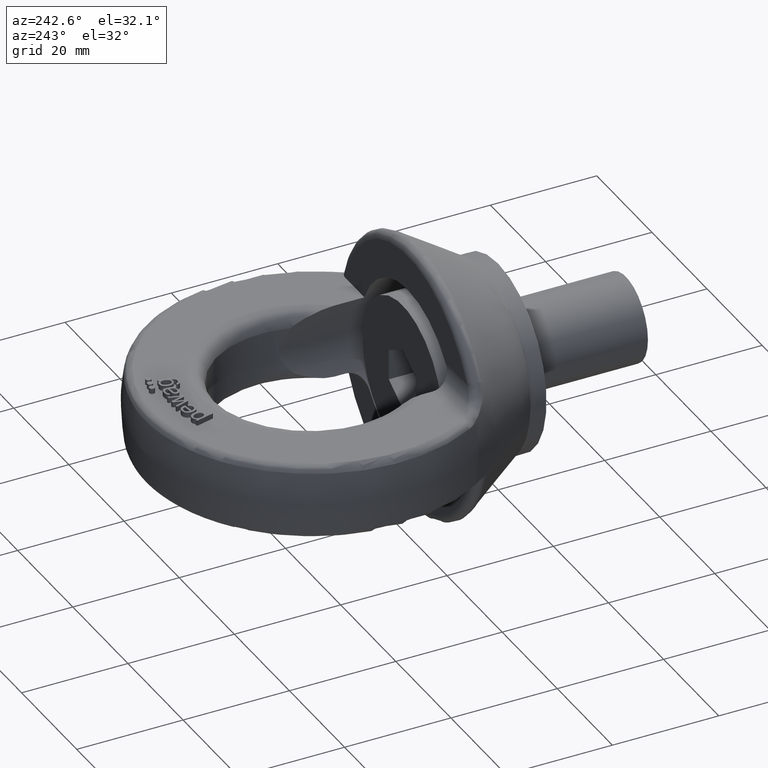
[diagram: clean part render]
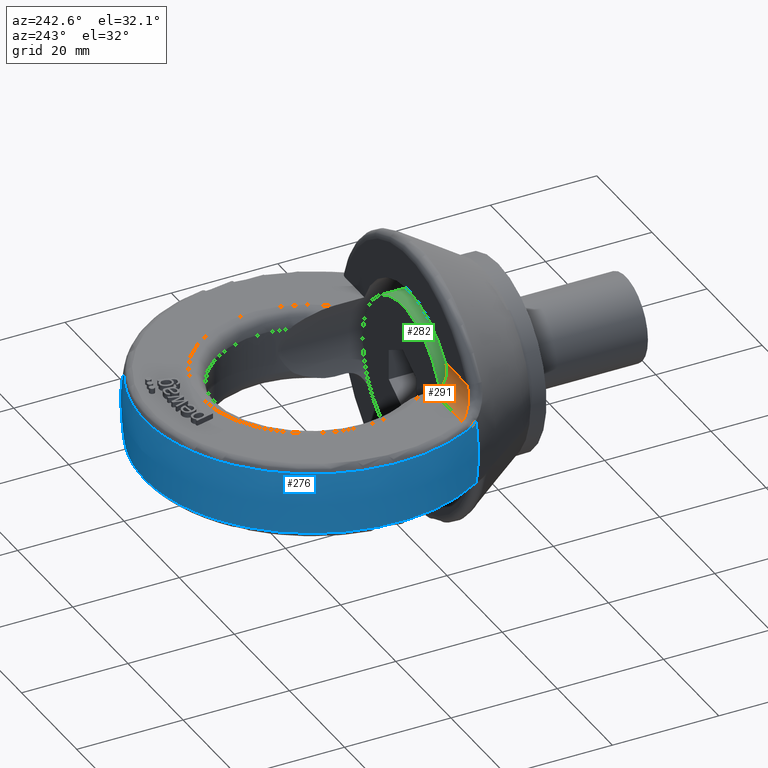
[diagram: same view with three faces highlighted in distinct colors, each labeled with its STEP entity id]
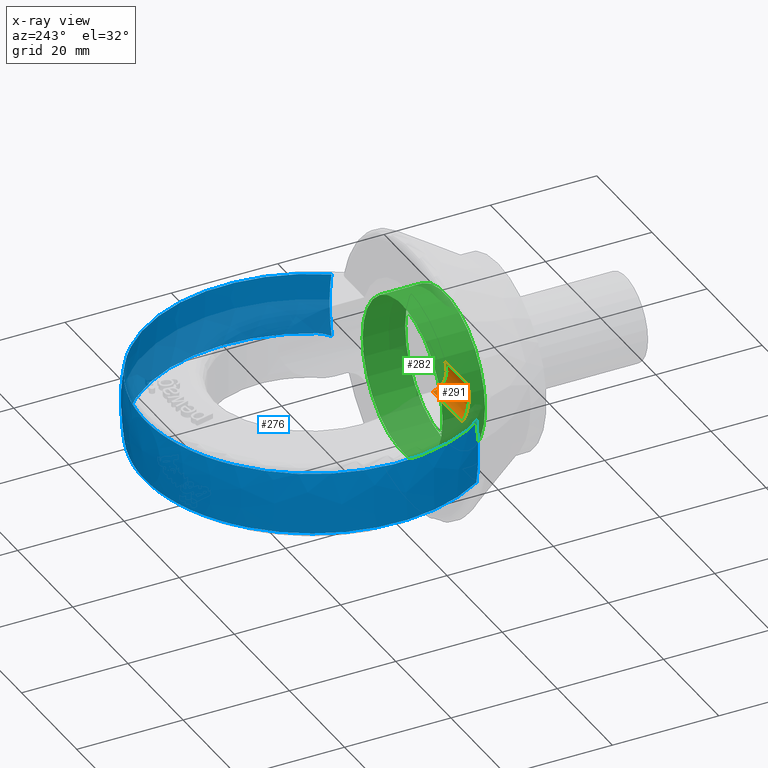
[diagram: x-ray of the same camera — body ghosted, the three highlighted faces saturated]
A machine part, auxiliary view with three faces highlighted in distinct colors.
The next image is the same camera in x-ray (body ghosted, the three faces saturated) — at least one of them is partly hidden behind the body in this view.
Their STEP definitions:

[orange] entity #291 — the highlighted cylindrical surface (edge-blend (fillet) strip) has radius 3.5 mm, axis along (-1, -0, 0).
#115=CYLINDRICAL_SURFACE('',#3075,3.5);
#134=FACE_OUTER_BOUND('',#673,.T.);
#291=ADVANCED_FACE('',(#134),#115,.F.);
#673=EDGE_LOOP('',(#1404,#1405,#1406,#1407,#1408));
#868=LINE('',#3913,#1052);
#876=LINE('',#4023,#1060);
#1052=VECTOR('',#3218,1.);
#1060=VECTOR('',#3228,1.);
#1404=ORIENTED_EDGE('',*,*,#2415,.F.);
#1405=ORIENTED_EDGE('',*,*,#2483,.T.);
#1406=ORIENTED_EDGE('',*,*,#2484,.T.);
#1407=ORIENTED_EDGE('',*,*,#2431,.F.);
#1408=ORIENTED_EDGE('',*,*,#2463,.F.);
#2129=VERTEX_POINT('',#3884);
#2136=VERTEX_POINT('',#3912);
#2152=VERTEX_POINT('',#4024);
#2153=VERTEX_POINT('',#4025);
#2192=VERTEX_POINT('',#4236);
#2415=EDGE_CURVE('',#2136,#2129,#868,.T.);
#2431=EDGE_CURVE('',#2152,#2153,#876,.T.);
#2463=EDGE_CURVE('',#2129,#2152,#2825,.T.);
#2483=EDGE_CURVE('',#2136,#2192,#2826,.T.);
#2484=EDGE_CURVE('',#2192,#2153,#2827,.T.);
#2825=B_SPLINE_CURVE_WITH_KNOTS('',3,(#4173,#4174,#4175,#4176,#4177,#4178,
#4179,#4180,#4181,#4182,#4183,#4184,#4185,#4186,#4187,#4188),
 .UNSPECIFIED.,.F.,.F.,(4,3,3,3,3,4),(0.,0.182677939227406,0.365097147091186,
0.551353588669147,0.75143462339489,1.),.UNSPECIFIED.);
#2826=B_SPLINE_CURVE_WITH_KNOTS('',3,(#4232,#4233,#4234,#4235),
 .UNSPECIFIED.,.F.,.F.,(4,4),(0.,1.),.UNSPECIFIED.);
#2827=B_SPLINE_CURVE_WITH_KNOTS('',3,(#4237,#4238,#4239,#4240),
 .UNSPECIFIED.,.F.,.F.,(4,4),(0.,1.),.UNSPECIFIED.);
#3075=AXIS2_PLACEMENT_3D('',#4241,#3318,#3319);
#3218=DIRECTION('',(1.,1.94269602349167E-16,-1.96585689920538E-32));
#3228=DIRECTION('',(-1.,-1.94269602349167E-16,1.96585689920538E-32));
#3318=DIRECTION('',(-1.,-1.94269602349167E-16,1.96585689920538E-32));
#3319=DIRECTION('',(0.,-1.,0.));
#3884=CARTESIAN_POINT('',(-15.7583784425883,20.5,7.00000000000001));
#3912=CARTESIAN_POINT('',(-26.3581107061944,20.5,7.00000000000001));
#3913=CARTESIAN_POINT('',(64.,20.5,7.00000000000001));
#4023=CARTESIAN_POINT('',(-8.92946428571429,17.,10.5));
#4024=CARTESIAN_POINT('',(-13.6775908382958,17.,10.5));
#4025=CARTESIAN_POINT('',(-21.4831972949938,17.,10.5));
#4173=CARTESIAN_POINT('',(-15.7583784425883,20.5,7.00000000000001));
#4174=CARTESIAN_POINT('',(-15.7583784425883,20.1367796577121,7.00000000000001));
#4175=CARTESIAN_POINT('',(-15.7327574774421,19.7685357293251,7.05843871219315));
#4176=CARTESIAN_POINT('',(-15.6823100786297,19.4261831930591,7.16879639392438));
#4177=CARTESIAN_POINT('',(-15.6319021154529,19.0840982799058,7.27906780707816));
#4178=CARTESIAN_POINT('',(-15.5552275989607,18.7586781954158,7.44393401751468));
#4179=CARTESIAN_POINT('',(-15.4553180463978,18.4741528672489,7.6458900871333));
#4180=CARTESIAN_POINT('',(-15.3532334029808,18.1834332521176,7.85224286145822));
#4181=CARTESIAN_POINT('',(-15.2242331760566,17.9279858536678,8.10210777458113));
#4182=CARTESIAN_POINT('',(-15.0746445974216,17.7216230990911,8.37147426689362));
#4183=CARTESIAN_POINT('',(-14.9139142210308,17.49988983898,8.66090396862287));
#4184=CARTESIAN_POINT('',(-14.7256743961402,17.3292358264097,8.97920204975943));
#4185=CARTESIAN_POINT('',(-14.5202538645523,17.2121686958103,9.29993112064746));
#4186=CARTESIAN_POINT('',(-14.2656398551719,17.0670666884396,9.69746740405788));
#4187=CARTESIAN_POINT('',(-13.9783330617718,17.,10.1082448494758));
#4188=CARTESIAN_POINT('',(-13.6775908382958,17.,10.5));
#4232=CARTESIAN_POINT('',(-26.3581107061944,20.5,7.00000000000001));
#4233=CARTESIAN_POINT('',(-25.9513332016015,19.9718282512882,7.00000000000001));
#4234=CARTESIAN_POINT('',(-25.5128799493974,19.4968930462756,7.11337690603593));
#4235=CARTESIAN_POINT('',(-25.0476201606404,19.0638977635784,7.30819637719599));
#4236=CARTESIAN_POINT('',(-25.0476201606405,19.0638977635783,7.30819637719601));
#4237=CARTESIAN_POINT('',(-25.0476201606405,19.0638977635783,7.30819637719601));
#4238=CARTESIAN_POINT('',(-23.7847677954004,17.8886207890674,7.83699391331361));
#4239=CARTESIAN_POINT('',(-22.5049784100453,17.,9.00672617095578));
#4240=CARTESIAN_POINT('',(-21.4831972949938,17.,10.5));
#4241=CARTESIAN_POINT('',(-8.92946428571429,20.5,10.5));

[blue] entity #276 — the highlighted spherical surface has radius 32 mm.
#123=SPHERICAL_SURFACE('',#3051,32.);
#126=FACE_OUTER_BOUND('',#651,.T.);
#276=ADVANCED_FACE('',(#126),#123,.T.);
#541=CIRCLE('',#3043,26.9423040781809);
#543=CIRCLE('',#3045,26.9423040781809);
#546=CIRCLE('',#3049,31.4595742880864);
#547=CIRCLE('',#3050,31.4595742880864);
#651=EDGE_LOOP('',(#1339,#1340,#1341,#1342,#1343,#1344));
#1339=ORIENTED_EDGE('',*,*,#2434,.F.);
#1340=ORIENTED_EDGE('',*,*,#2443,.T.);
#1341=ORIENTED_EDGE('',*,*,#2444,.T.);
#1342=ORIENTED_EDGE('',*,*,#2438,.F.);
#1343=ORIENTED_EDGE('',*,*,#2445,.T.);
#1344=ORIENTED_EDGE('',*,*,#2446,.T.);
#2154=VERTEX_POINT('',#4030);
#2155=VERTEX_POINT('',#4031);
#2158=VERTEX_POINT('',#4046);
#2159=VERTEX_POINT('',#4048);
#2163=VERTEX_POINT('',#4070);
#2164=VERTEX_POINT('',#4076);
#2434=EDGE_CURVE('',#2154,#2155,#541,.T.);
#2438=EDGE_CURVE('',#2158,#2159,#543,.T.);
#2443=EDGE_CURVE('',#2154,#2163,#2816,.T.);
#2444=EDGE_CURVE('',#2163,#2159,#546,.T.);
#2445=EDGE_CURVE('',#2158,#2164,#2817,.T.);
#2446=EDGE_CURVE('',#2164,#2155,#547,.T.);
#2816=B_SPLINE_CURVE_WITH_KNOTS('',3,(#4066,#4067,#4068,#4069),
 .UNSPECIFIED.,.F.,.F.,(4,4),(0.,1.),.UNSPECIFIED.);
#2817=B_SPLINE_CURVE_WITH_KNOTS('',3,(#4072,#4073,#4074,#4075),
 .UNSPECIFIED.,.F.,.F.,(4,4),(0.,1.),.UNSPECIFIED.);
#3043=AXIS2_PLACEMENT_3D('',#4029,#3235,#3236);
#3045=AXIS2_PLACEMENT_3D('',#4047,#3239,#3240);
#3049=AXIS2_PLACEMENT_3D('',#4071,#3247,#3248);
#3050=AXIS2_PLACEMENT_3D('',#4077,#3249,#3250);
#3051=AXIS2_PLACEMENT_3D('',#4078,#3251,#3252);
#3235=DIRECTION('',(-1.90154478884631E-15,-1.,0.));
#3236=DIRECTION('',(1.,-1.93159813386005E-15,0.));
#3239=DIRECTION('',(-1.90154478884631E-15,-1.,0.));
#3240=DIRECTION('',(1.,-1.93159813386005E-15,0.));
#3247=DIRECTION('',(0.,-1.01192202765314E-16,-1.));
#3248=DIRECTION('',(0.,1.,-1.102827050418E-16));
#3249=DIRECTION('',(-2.34291072916505E-15,-1.01192202765314E-16,1.));
#3250=DIRECTION('',(-2.44876796710701E-31,1.,1.102827050418E-16));
#3251=DIRECTION('',(-1.84031244888895E-15,-1.,0.));
#3252=DIRECTION('',(1.,-1.95156391047391E-15,0.));
#4029=CARTESIAN_POINT('',(-9.36813676240044E-14,17.7340725427552,0.));
#4030=CARTESIAN_POINT('',(-26.1935897104737,17.7340725427552,6.30742476138499));
#4031=CARTESIAN_POINT('',(-26.2981475284626,17.7340725427552,-5.85620915032687));
#4046=CARTESIAN_POINT('',(26.1935897104737,17.7340725427552,-6.30742476138493));
#4047=CARTESIAN_POINT('',(-9.36813676240044E-14,17.7340725427552,0.));
#4048=CARTESIAN_POINT('',(26.2981475284627,17.7340725427552,5.85620915032681));
#4066=CARTESIAN_POINT('',(-26.1935897104736,17.7340725427553,6.30742476138497));
#4067=CARTESIAN_POINT('',(-26.6890775314338,18.379650458603,6.01695705149535));
#4068=CARTESIAN_POINT('',(-27.1466120697749,19.0778053431082,5.85620915032673));
#4069=CARTESIAN_POINT('',(-27.5640373398111,19.8366013071895,5.85620915032672));
#4070=CARTESIAN_POINT('',(-27.5640373398111,19.8366013071895,5.85620915032681));
#4071=CARTESIAN_POINT('',(0.,35.,5.8562091503268));
#4072=CARTESIAN_POINT('',(26.1935897104736,17.7340725427553,-6.30742476138491));
#4073=CARTESIAN_POINT('',(26.6890775314338,18.379650458603,-6.01695705149529));
#4074=CARTESIAN_POINT('',(27.1466120697749,19.0778053431082,-5.85620915032667));
#4075=CARTESIAN_POINT('',(27.5640373398112,19.8366013071895,-5.85620915032666));
#4076=CARTESIAN_POINT('',(27.5640373398111,19.8366013071895,-5.85620915032674));
#4077=CARTESIAN_POINT('',(1.37205752505352E-14,35.,-5.8562091503268));
#4078=CARTESIAN_POINT('',(0.,35.,0.));

[green] entity #282 — the highlighted cylindrical surface (bore or boss wall) has radius 14.5 mm, axis along (0, 1, 0).
#113=CYLINDRICAL_SURFACE('',#3065,14.5);
#282=ADVANCED_FACE('',(#596,#597),#113,.T.);
#553=CIRCLE('',#3060,14.5);
#555=CIRCLE('',#3064,14.5);
#596=FACE_BOUND('',#661,.T.);
#597=FACE_BOUND('',#662,.T.);
#661=EDGE_LOOP('',(#1370));
#662=EDGE_LOOP('',(#1371));
#1370=ORIENTED_EDGE('',*,*,#2454,.T.);
#1371=ORIENTED_EDGE('',*,*,#2464,.F.);
#2172=VERTEX_POINT('',#4115);
#2178=VERTEX_POINT('',#4191);
#2454=EDGE_CURVE('',#2172,#2172,#553,.T.);
#2464=EDGE_CURVE('',#2178,#2178,#555,.T.);
#3060=AXIS2_PLACEMENT_3D('',#4114,#3269,#3270);
#3064=AXIS2_PLACEMENT_3D('',#4190,#3279,#3280);
#3065=AXIS2_PLACEMENT_3D('',#4192,#3281,#3282);
#3269=DIRECTION('',(-1.94269602349167E-16,1.,0.));
#3270=DIRECTION('',(-1.,-2.39272203583008E-16,0.));
#3279=DIRECTION('',(0.,1.,0.));
#3280=DIRECTION('',(1.,0.,6.12323399573677E-17));
#3281=DIRECTION('',(0.,1.,0.));
#3282=DIRECTION('',(0.,0.,1.));
#4114=CARTESIAN_POINT('',(0.,10.,0.));
#4115=CARTESIAN_POINT('',(-14.5,10.,0.));
#4190=CARTESIAN_POINT('',(0.,18.,0.));
#4191=CARTESIAN_POINT('',(14.5,18.,8.87868929381831E-16));
#4192=CARTESIAN_POINT('',(0.,1.5,0.));